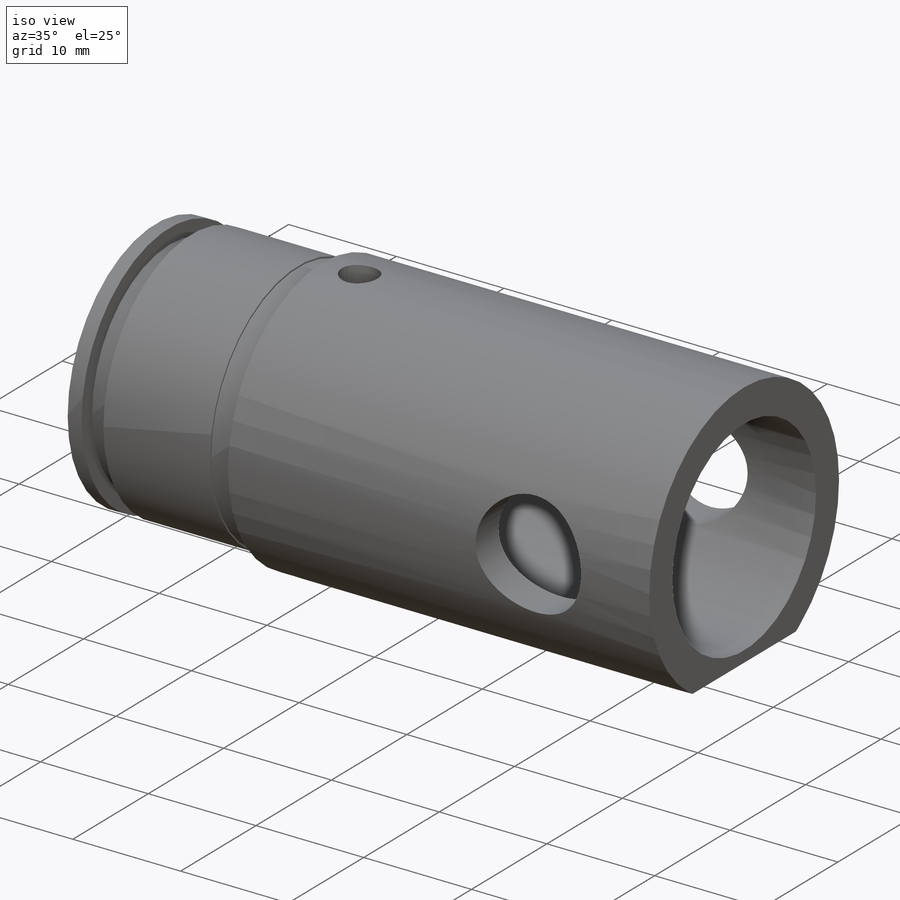
[diagram: iso view]
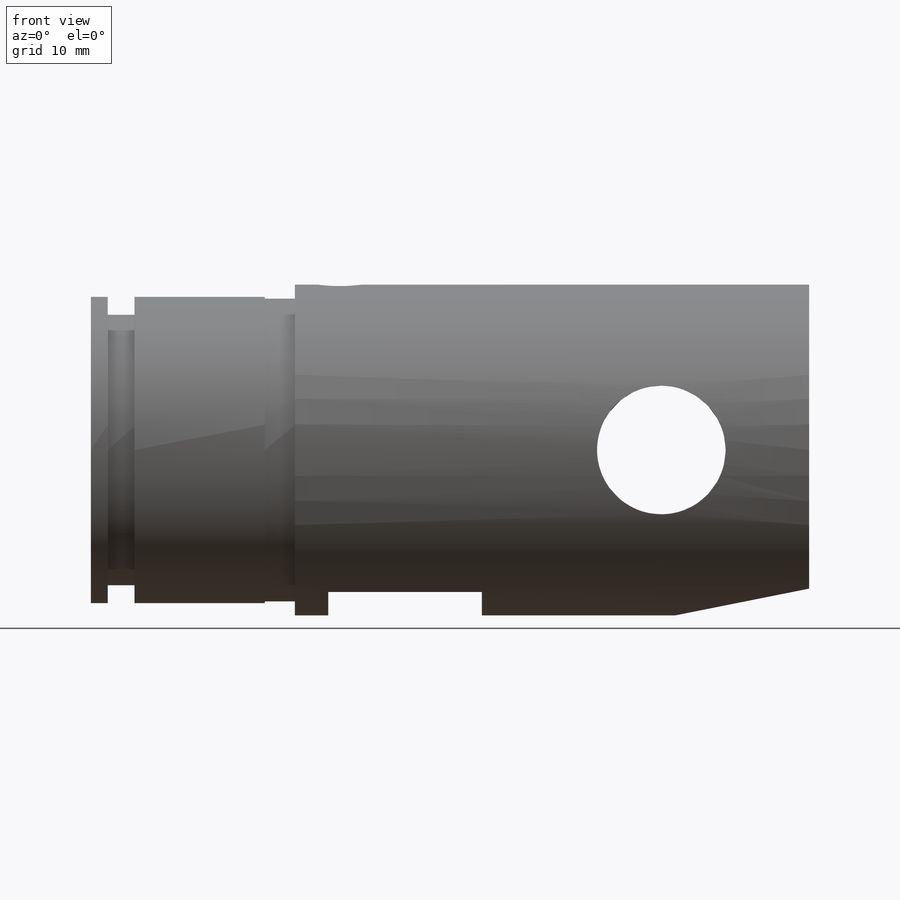
[diagram: front view]
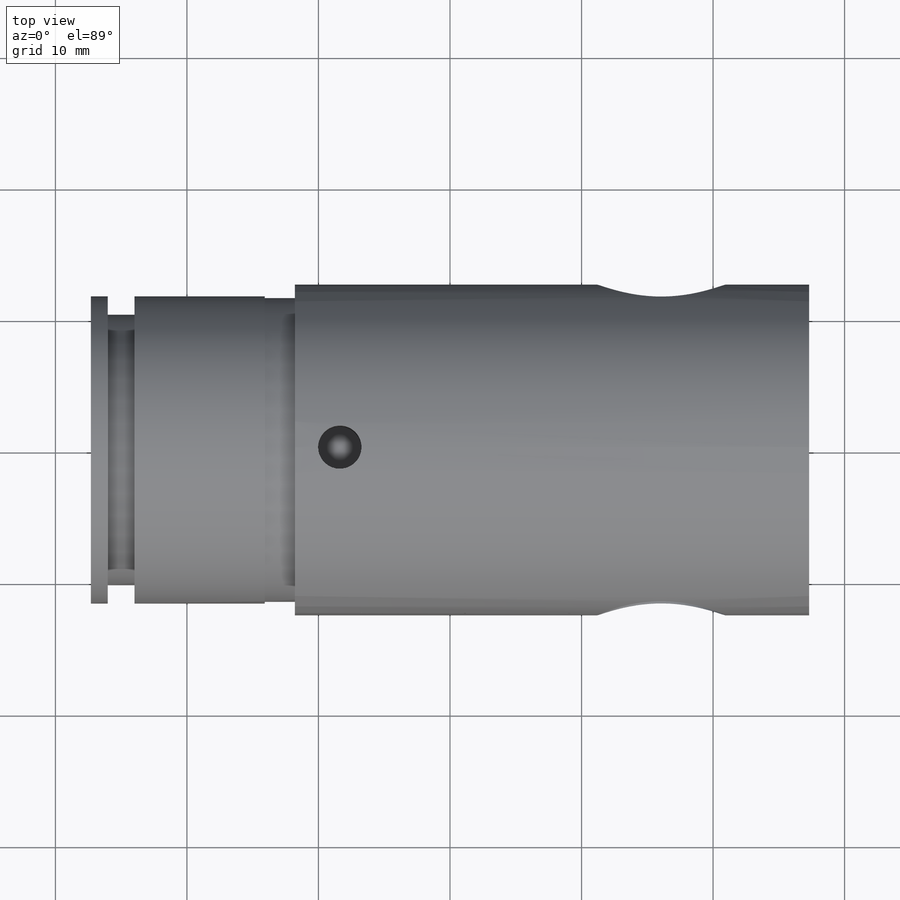
[diagram: top view]
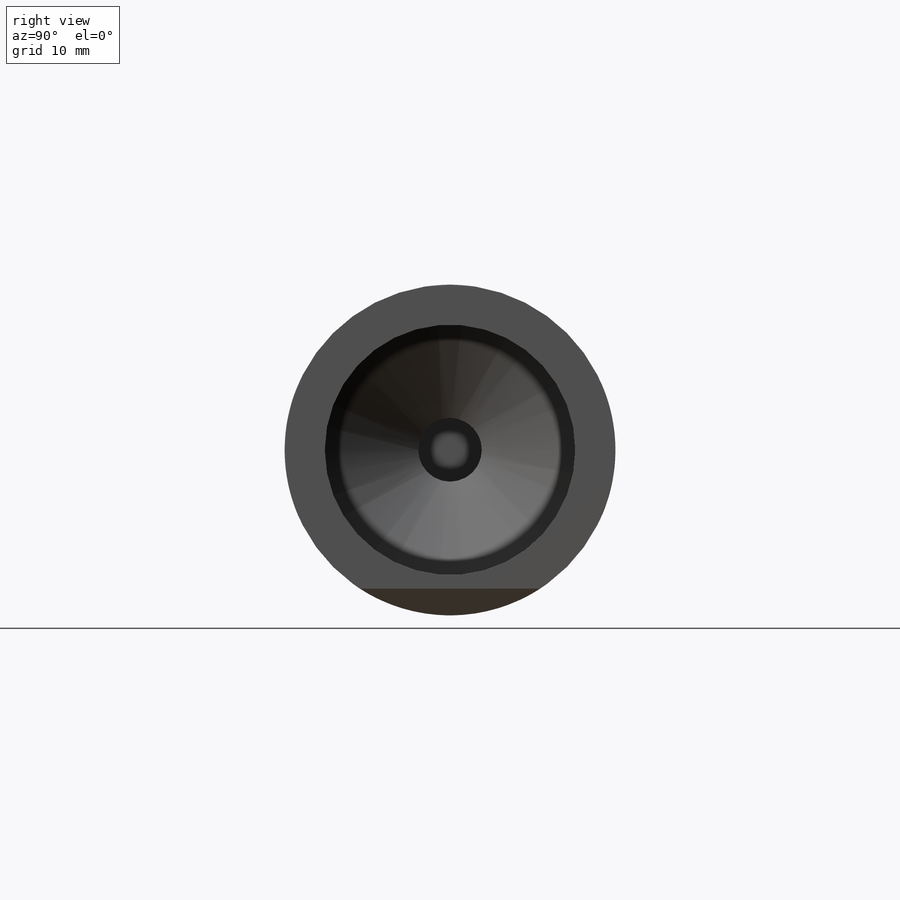
[diagram: right view]
SOLIDWORKS PART (.sldprt)
format: sldprt  version: not decoded by parser v0  size: 320,512 bytes
history: native  units: mm
features: sketch x5, cut_extrude x4, material x1, revolve x1, plane x1 (+13 scaffold rows collapsed)
feature tree (25):
  scaffold x13  (default folders/planes/origin — collapsed)
  material  "6061-T6 (SS)"
  sketch  "Sketch1"  dims[c1.D1=27.305mm c1.D2=27.305mm c1.D3=12.573mm c1.D4=39.1033mm c1.D5=~11.55065mm c1.D6=2.286mm c1.D7=9.906mm c1.D8=~10.28065mm c1.D9=2.032mm c1.D10=11.684mm c1.D11=~3.05435mm c1.D12=31.8516mm c1.D13=35.4965mm c1.D14=2.413mm c2.D2=12.573mm c2.D3=11.684mm c2.D5=~7.98596mm]
  revolve  "Revolve2"  Angle=360deg
  sketch  "Sketch2"  dims[c1.D1=2.54mm c1.D2=23.368mm c1.D3=11.684mm c2.D1=1.778mm]
  sketch  "Sketch3"  dims[D1=10.16mm D2=23.114mm]
  cut_extrude  "Cut-Extrude4"  [1 undecoded]
  cut_extrude  "Cut-Extrude5"  [1 undecoded]
  plane  "Plane1"
  sketch  "Sketch4"  dims[D2=3.302mm D1=18.923mm]
  cut_extrude  "Cut-Extrude6"  Depth=4.572mm
  sketch  "Sketch5"  dims[D2=9.779mm D1=11.2395mm]
  cut_extrude  "Cut-Extrude7"  [1 undecoded]
decode coverage: 7 of 10 modeling features carry decoded parameters
note: ~ marks probable driven/reference dimensions
note: 3 parameter values undecoded
summary: no parameter record found for 3 features
note: suppression state not decoded; provenance and decode notes live in map.json
